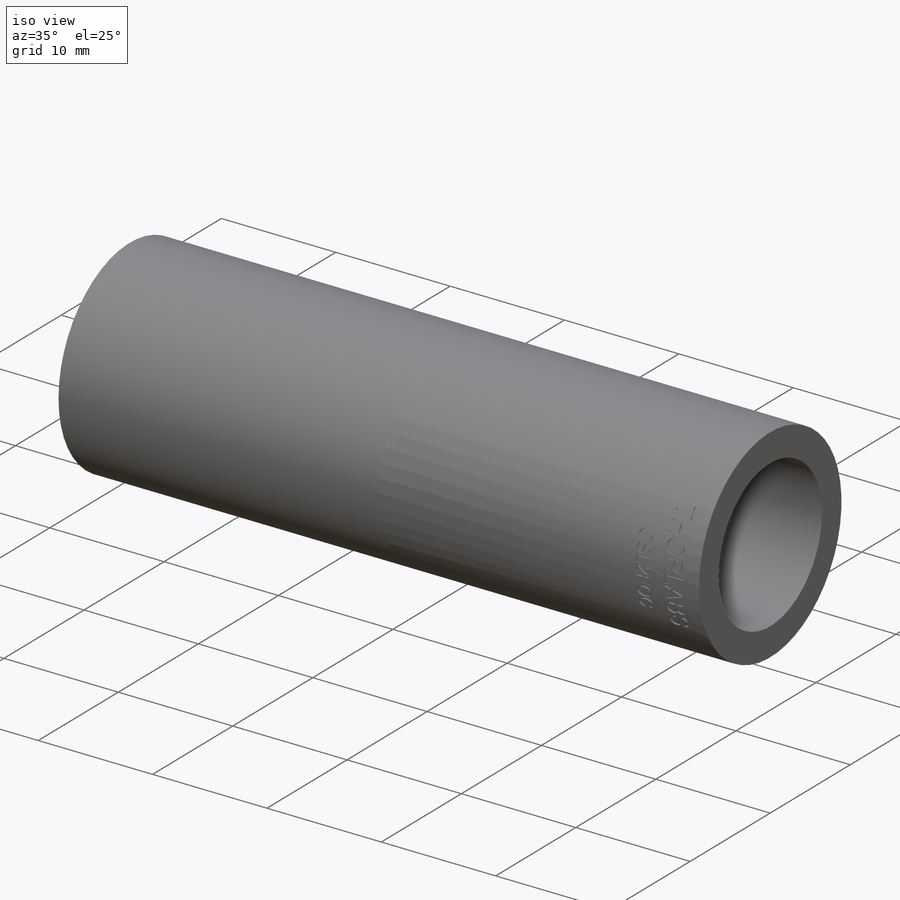
[diagram: iso view]
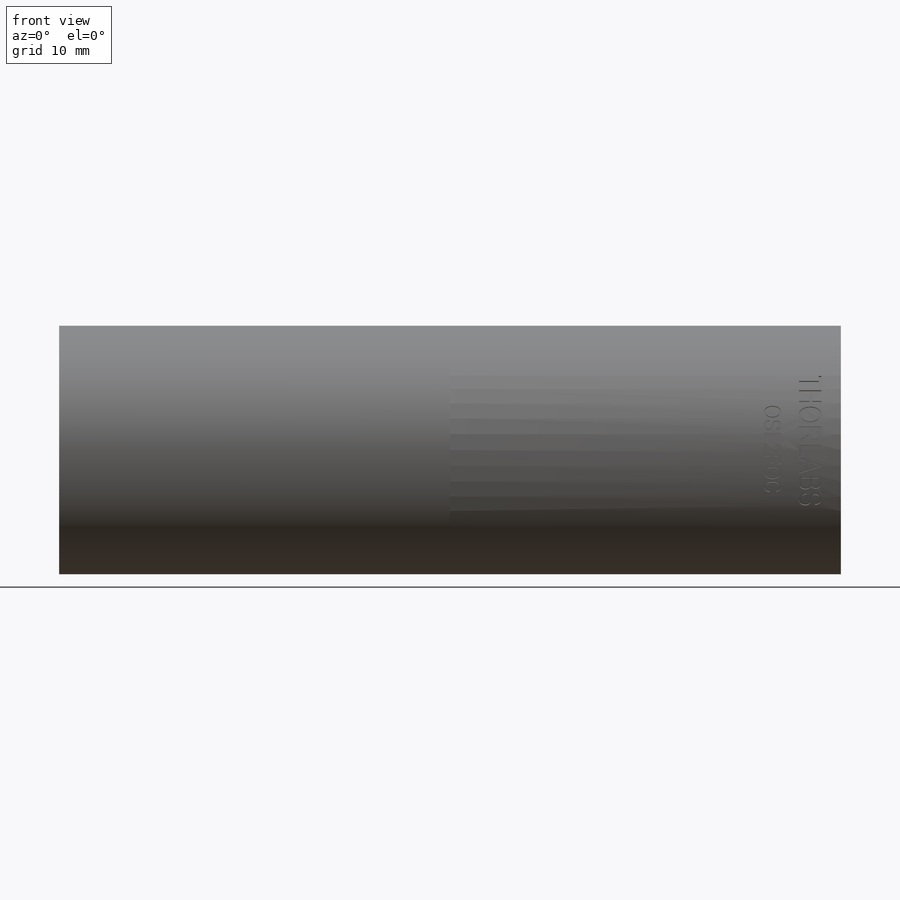
[diagram: front view]
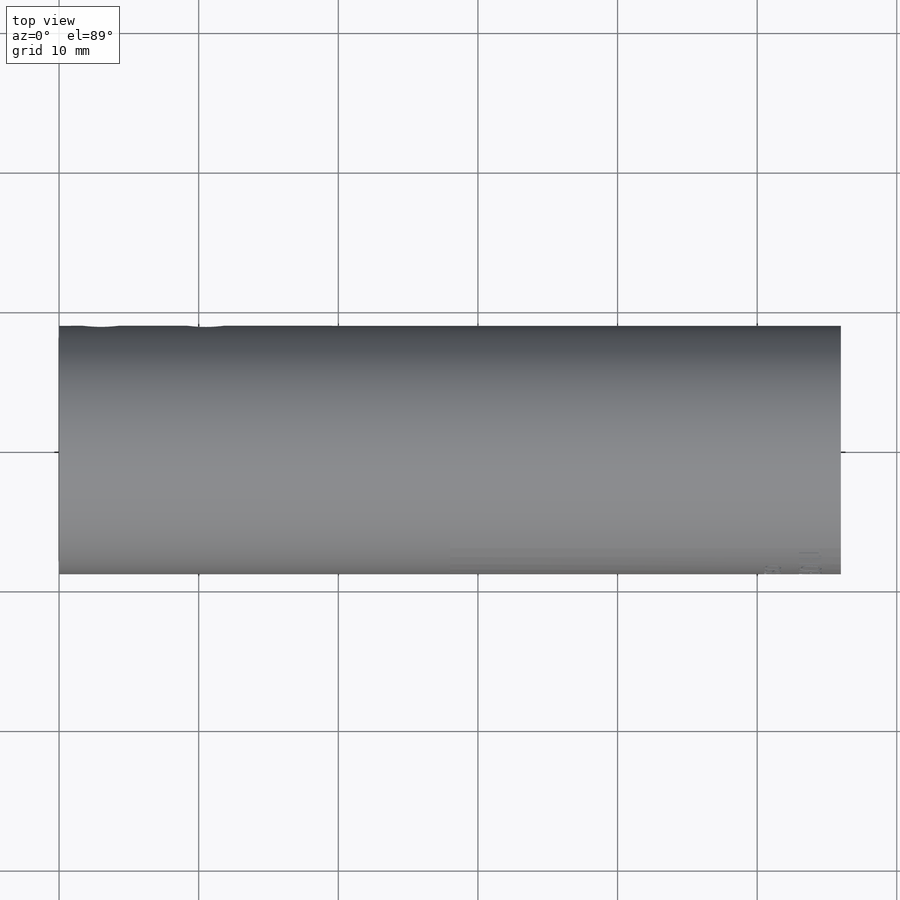
[diagram: top view]
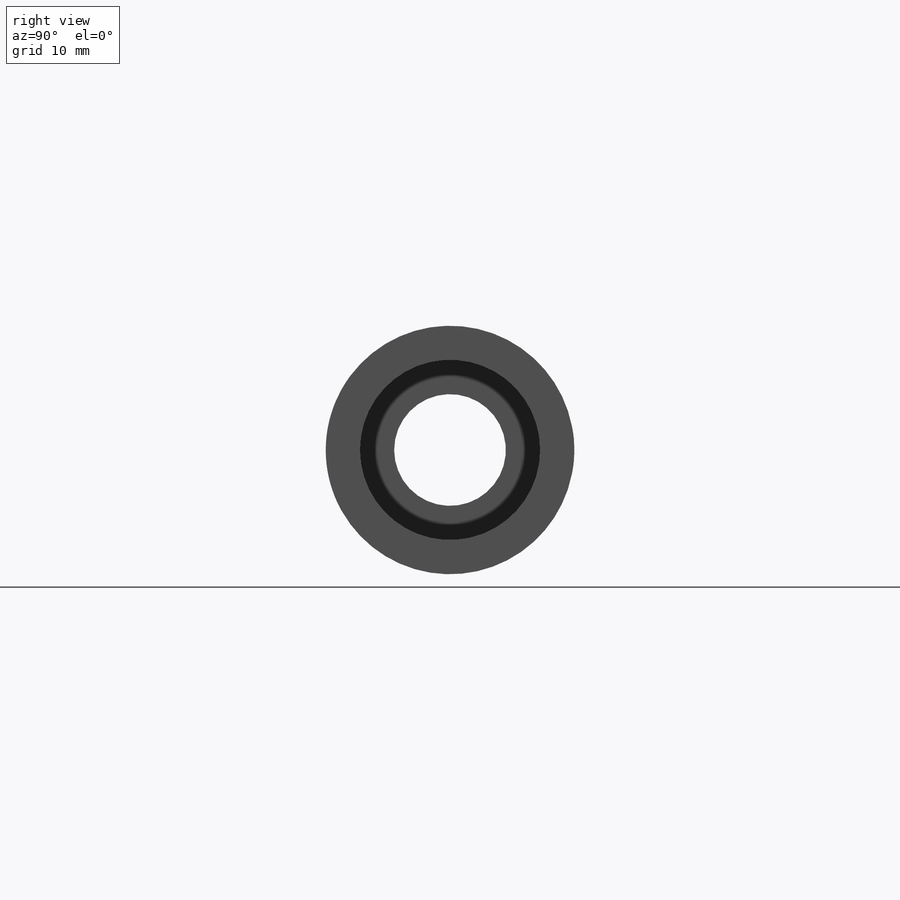
[diagram: right view]
SOLIDWORKS PART (.sldprt)
format: sldprt  version: not decoded by parser v0  size: 851,456 bytes
history: native  units: mm
features: sketch x5, thread x3, material x1, revolve x1, hole x1, cut_revolve x1 (+11 scaffold rows collapsed)
feature tree (23):
  scaffold x11  (default folders/planes/origin — collapsed)
  material  "6061-T6 (SS)"
  sketch  "Sketch1"  dims[c1.D1=17.8mm c1.D2=56.0mm c1.D3=13.1mm c1.D4=4.0mm c1.D5=6.5mm c1.D6=11.0mm c1.D7=5.1mm c2.D5=6.45mm]
  revolve  "Revolve1"  [1 undecoded]
  thread  "Cosmetic Thread2"  Diameter=43.9mm  [1 undecoded]
  hole  "#6-32 Tapped Hole2"  Diameter=2.7051mm Depth=9.39mm
  sketch  "3DSketch3"  dims[D1=7.5mm D2=3.0mm]
  sketch  "Sketch7"  dims[hole-wizard template sketch: 47 standard entries collapsed; hole parameters kept: c15.Tap Drill Depth=9.39mm c15.D3=~14.816244mm c15.Drill Angle=118.0deg]
  thread  "Hole Thread3"  Diameter=5.135613mm  [1 undecoded]
  thread  "Hole Thread4"  Diameter=5.135613mm  [1 undecoded]
  sketch  "Sketch9"  dims[c1.D1=1.0mm c1.D2=1.0mm c2.D1=1.0mm c2.D2=1.0mm c2.D3=1.0mm c2.D4=1.0mm]
  cut_revolve  "Cut-Revolve2"  Angle=360deg
  sketch  "Sketch10"  dims[c1.D1=3.0mm c1.D2=5.5mm c2.D1=0.1mm]
decode coverage: 10 of 11 modeling features carry decoded parameters
note: ~ marks probable driven/reference dimensions
note: 4 parameter values undecoded
note: suppression state not decoded; provenance and decode notes live in map.json
